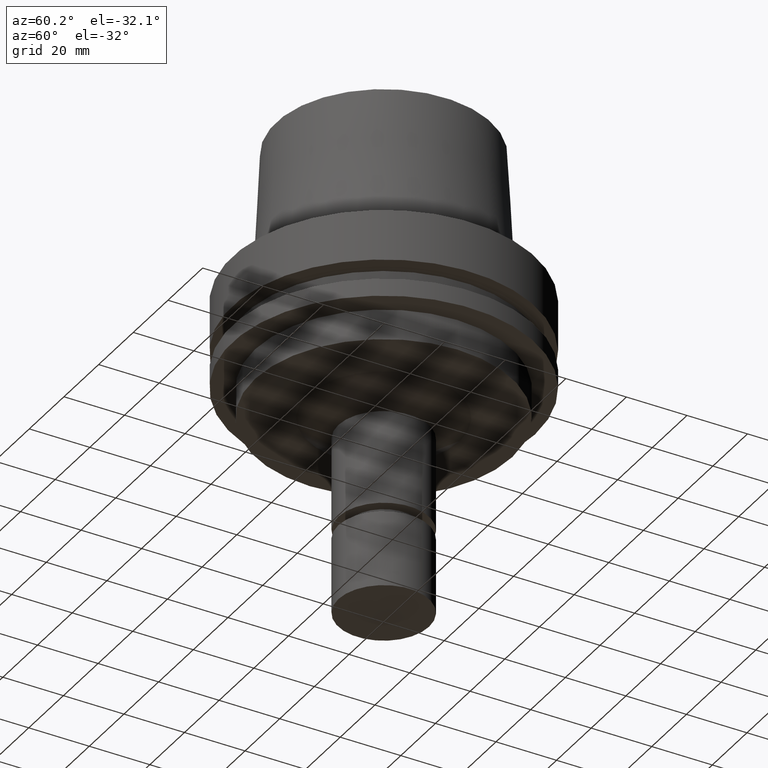
[diagram: clean part render]
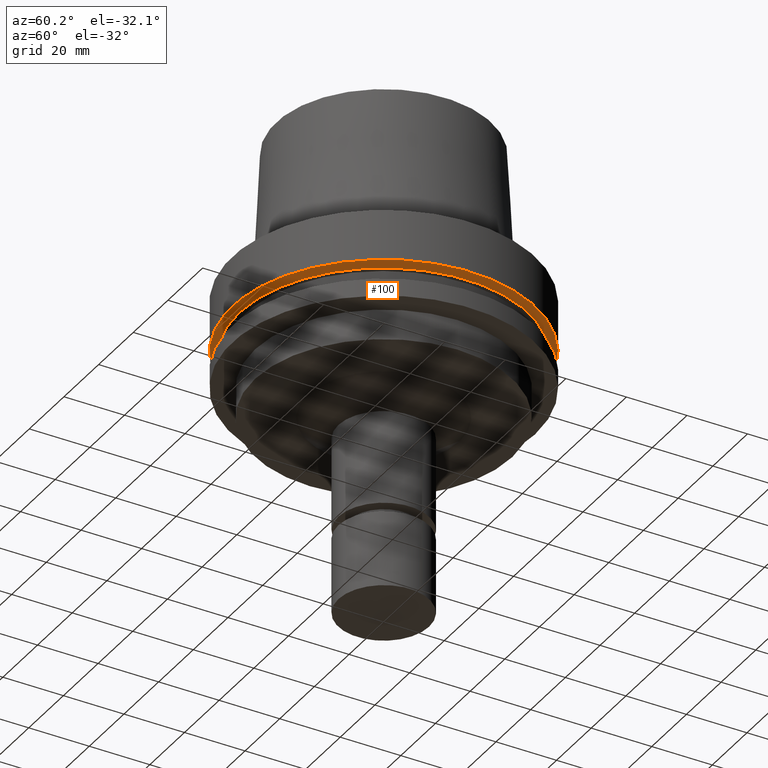
[diagram: same view with one face highlighted and labeled with its STEP entity id]
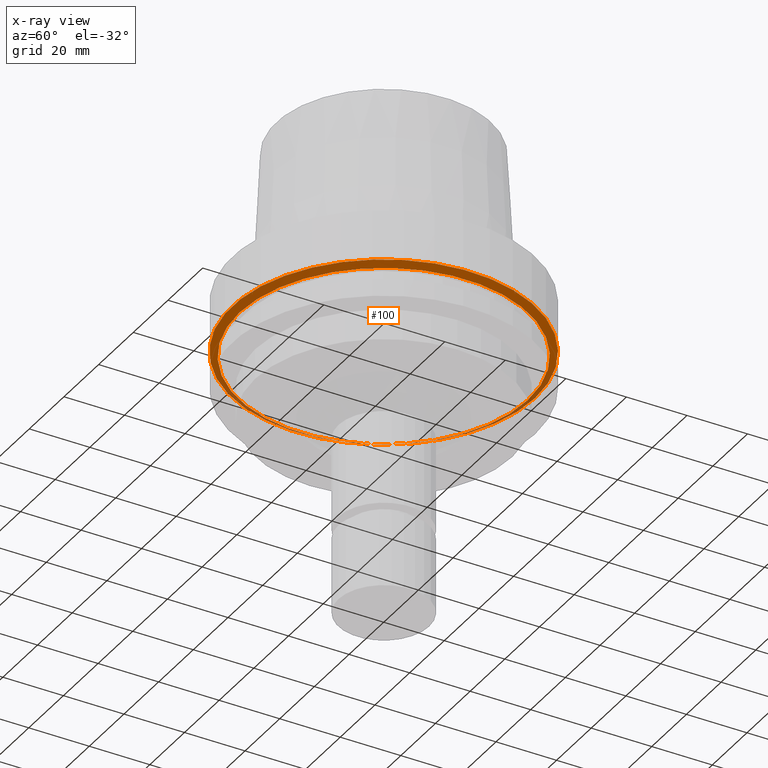
[diagram: x-ray of the same camera — body ghosted, the highlighted face saturated]
A machine part, auxiliary view. The second image highlights one B-rep face of the part: STEP entity #100.
The next image is the same camera in x-ray: the body ghosted, the highlighted face saturated — about 12% of this face is hidden behind the body in this view.
In plain terms, the highlighted conical surface has half-angle 60 deg.
Its self-contained STEP definition (entity closure, byte-faithful):
#84=EDGE_CURVE('Unnamed[1]',#227,#227,#228,.T.);
#100=ADVANCED_FACE('Unnamed[1]',(#251,#252),#253,.T.);
#187=EDGE_CURVE('Unnamed[1]',#385,#385,#386,.T.);
#227=VERTEX_POINT('',#428);
#228=CIRCLE('',#429,50.0);
#251=FACE_BOUND('',#458,.T.);
#252=FACE_BOUND('',#459,.T.);
#253=CONICAL_SURFACE('',#460,48.81129763,1.04719755328238);
#385=VERTEX_POINT('',#624);
#386=CIRCLE('',#625,47.62259526);
#428=CARTESIAN_POINT('',(1.0257889421431E-015,50.0,-16.75240474));
#429=AXIS2_PLACEMENT_3D('',#661,#662,#663);
#458=EDGE_LOOP('',(#688));
#459=EDGE_LOOP('',(#689));
#460=AXIS2_PLACEMENT_3D('',#690,#691,#692);
#624=CARTESIAN_POINT('',(1.10983616172729E-015,47.62259526,-18.125));
#625=AXIS2_PLACEMENT_3D('',#836,#837,#838);
#661=CARTESIAN_POINT('',(1.0257889421431E-015,2.05157788428619E-015,-16.75240474));
#662=DIRECTION('',(6.12323399573677E-017,1.22464679914735E-016,-1.0));
#663=DIRECTION('',(-1.23259516440783E-032,1.0,1.22464679914735E-016));
#688=ORIENTED_EDGE('',*,*,#187,.F.);
#689=ORIENTED_EDGE('',*,*,#84,.T.);
#690=CARTESIAN_POINT('',(1.06781255193519E-015,2.13562510387038E-015,-17.43870237));
#691=DIRECTION('',(-6.12323399573677E-017,-1.22464679914735E-016,1.0));
#692=DIRECTION('',(-1.23259516440783E-032,1.0,1.22464679914735E-016));
#836=CARTESIAN_POINT('',(1.10983616172729E-015,2.21967232345458E-015,-18.125));
#837=DIRECTION('',(6.12323399573676E-017,1.22464679914735E-016,-1.0));
#838=DIRECTION('',(-1.23259516440783E-032,1.0,1.22464679914735E-016));